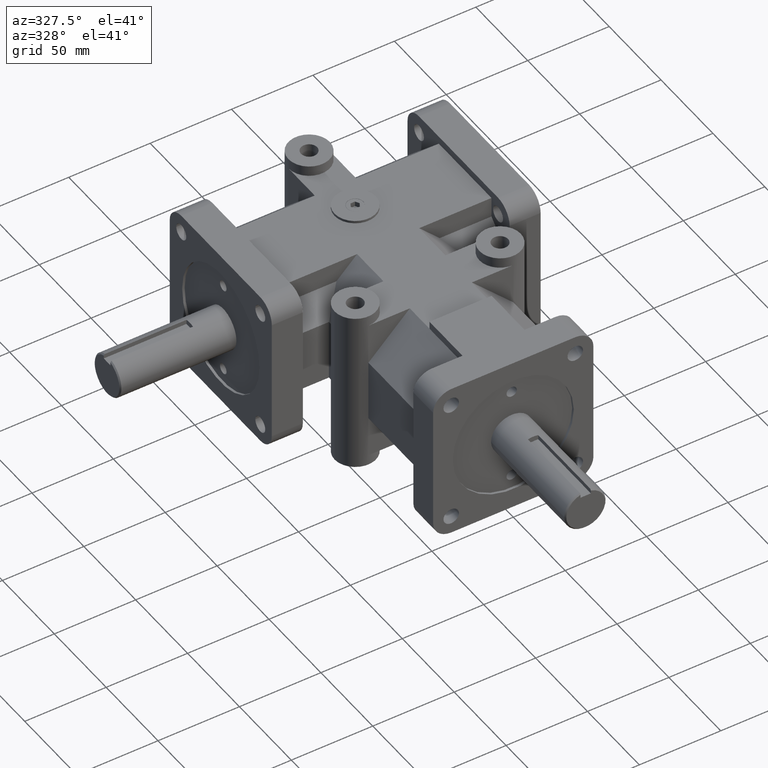
[diagram: clean part render]
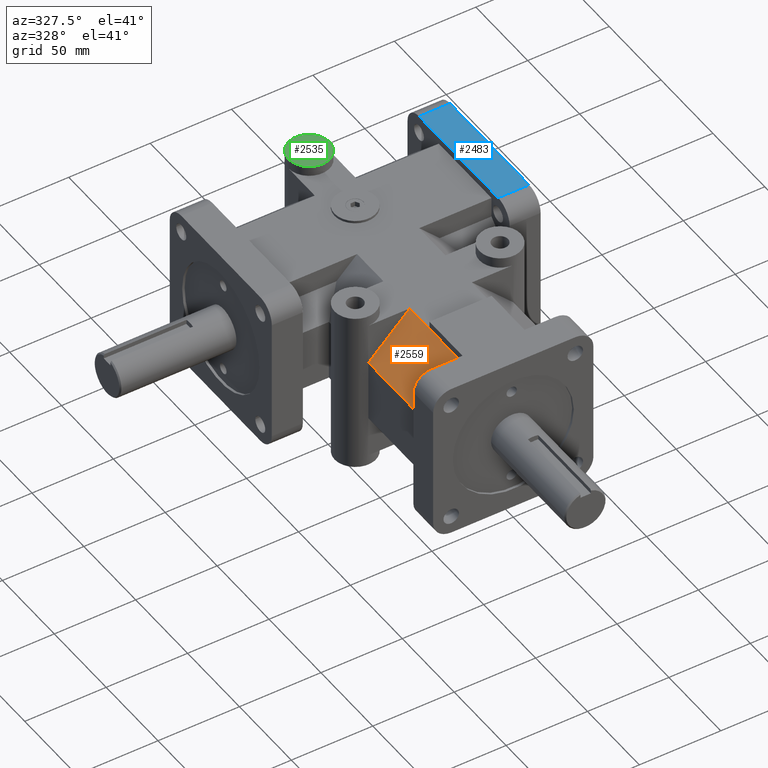
[diagram: same view with three faces highlighted in distinct colors, each labeled with its STEP entity id]
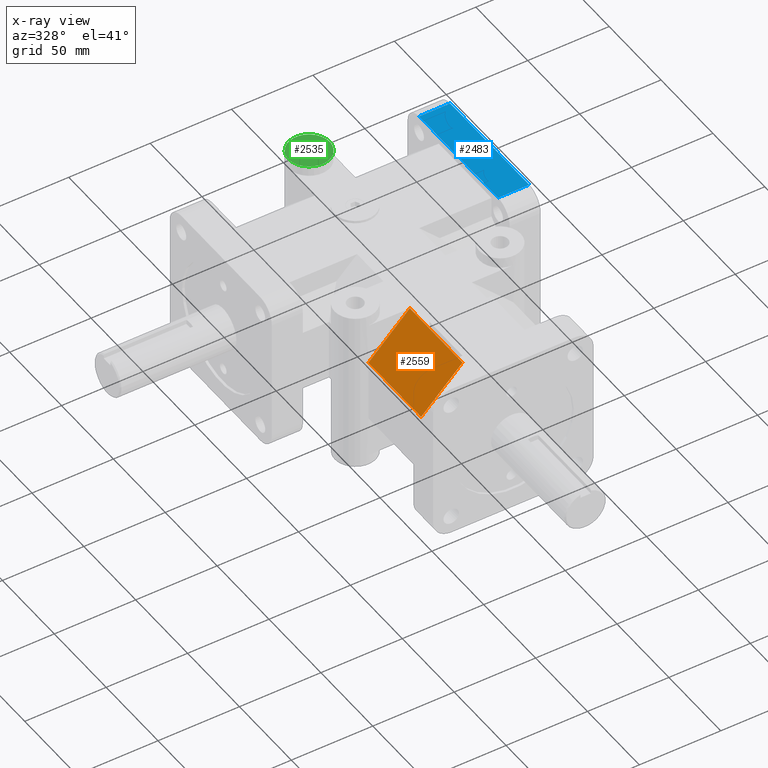
[diagram: x-ray of the same camera — body ghosted, the three highlighted faces saturated]
A machine part, auxiliary view with three faces highlighted in distinct colors.
The next image is the same camera in x-ray (body ghosted, the three faces saturated) — at least one of them is partly hidden behind the body in this view.
Their STEP definitions:

[orange] entity #2559 — the highlighted planar face has unit normal (-0.7071, 0, 0.7071).
#329=FACE_OUTER_BOUND('',#507,.T.);
#507=EDGE_LOOP('',(#2190,#2191,#2192,#2193,#2194));
#578=LINE('',#3672,#828);
#733=LINE('',#4200,#983);
#767=LINE('',#4259,#1017);
#775=LINE('',#4275,#1025);
#776=LINE('',#4276,#1026);
#828=VECTOR('',#2906,1.);
#983=VECTOR('',#3431,1.);
#1017=VECTOR('',#3493,1.);
#1025=VECTOR('',#3511,1.);
#1026=VECTOR('',#3512,1.);
#1085=VERTEX_POINT('',#3669);
#1086=VERTEX_POINT('',#3671);
#1262=VERTEX_POINT('',#4199);
#1273=VERTEX_POINT('',#4257);
#1276=VERTEX_POINT('',#4274);
#1317=EDGE_CURVE('',#1086,#1085,#578,.T.);
#1567=EDGE_CURVE('',#1085,#1262,#733,.T.);
#1601=EDGE_CURVE('',#1262,#1273,#767,.T.);
#1609=EDGE_CURVE('',#1273,#1276,#775,.F.);
#1610=EDGE_CURVE('',#1276,#1086,#776,.T.);
#2190=ORIENTED_EDGE('',*,*,#1567,.T.);
#2191=ORIENTED_EDGE('',*,*,#1601,.T.);
#2192=ORIENTED_EDGE('',*,*,#1609,.T.);
#2193=ORIENTED_EDGE('',*,*,#1610,.T.);
#2194=ORIENTED_EDGE('',*,*,#1317,.T.);
#2414=PLANE('',#2819);
#2559=ADVANCED_FACE('',(#329),#2414,.T.);
#2819=AXIS2_PLACEMENT_3D('',#4273,#3509,#3510);
#2906=DIRECTION('',(0.,1.,0.));
#3431=DIRECTION('',(-0.707106781186548,0.,-0.707106781186548));
#3493=DIRECTION('',(0.,-1.,0.));
#3509=DIRECTION('center_axis',(-0.707106781186548,0.,0.707106781186548));
#3510=DIRECTION('ref_axis',(-0.707106781186548,0.,-0.707106781186548));
#3511=DIRECTION('',(-0.707106781186548,0.,-0.707106781186548));
#3512=DIRECTION('',(0.,1.,0.));
#3669=CARTESIAN_POINT('',(-0.75,2.75,1.75));
#3671=CARTESIAN_POINT('',(-0.75,2.,1.75));
#3672=CARTESIAN_POINT('',(-0.75,4.27896341463415,1.75));
#4199=CARTESIAN_POINT('',(-1.75,2.75,0.749999999999998));
#4200=CARTESIAN_POINT('',(-1.6875,2.75,0.812499999999999));
#4257=CARTESIAN_POINT('',(-1.75,0.75,0.75));
#4259=CARTESIAN_POINT('',(-1.75,4.27896341463415,0.75));
#4273=CARTESIAN_POINT('Origin',(-1.25,4.27896341463415,1.25));
#4274=CARTESIAN_POINT('',(-0.75,0.75,1.75));
#4275=CARTESIAN_POINT('',(-1.6875,0.75,0.8125));
#4276=CARTESIAN_POINT('',(-0.75,4.27896341463415,1.75));

[blue] entity #2483 — the highlighted planar face has unit normal (0, 0, 1).
#253=FACE_OUTER_BOUND('',#417,.T.);
#417=EDGE_LOOP('',(#1844,#1845,#1846,#1847));
#584=LINE('',#3693,#834);
#628=LINE('',#3851,#878);
#630=LINE('',#3857,#880);
#651=LINE('',#3931,#901);
#834=VECTOR('',#2922,1.);
#878=VECTOR('',#3078,1.);
#880=VECTOR('',#3084,1.);
#901=VECTOR('',#3155,1.);
#1094=VERTEX_POINT('',#3689);
#1096=VERTEX_POINT('',#3692);
#1154=VERTEX_POINT('',#3849);
#1155=VERTEX_POINT('',#3853);
#1327=EDGE_CURVE('',#1094,#1096,#584,.T.);
#1403=EDGE_CURVE('',#1154,#1094,#628,.T.);
#1406=EDGE_CURVE('',#1096,#1155,#630,.T.);
#1441=EDGE_CURVE('',#1155,#1154,#651,.T.);
#1844=ORIENTED_EDGE('',*,*,#1403,.F.);
#1845=ORIENTED_EDGE('',*,*,#1441,.F.);
#1846=ORIENTED_EDGE('',*,*,#1406,.F.);
#1847=ORIENTED_EDGE('',*,*,#1327,.F.);
#2363=PLANE('',#2703);
#2483=ADVANCED_FACE('',(#253),#2363,.T.);
#2703=AXIS2_PLACEMENT_3D('',#3930,#3153,#3154);
#2922=DIRECTION('',(0.,1.,0.));
#3078=DIRECTION('',(-1.,0.,0.));
#3084=DIRECTION('',(1.,0.,0.));
#3153=DIRECTION('center_axis',(0.,0.,1.));
#3154=DIRECTION('ref_axis',(-1.,0.,0.));
#3155=DIRECTION('',(0.,-1.,0.));
#3689=CARTESIAN_POINT('',(2.5,4.5025,1.9375));
#3692=CARTESIAN_POINT('',(2.5,7.4975,1.9375));
#3693=CARTESIAN_POINT('',(2.5,7.75,1.9375));
#3849=CARTESIAN_POINT('',(3.25,4.5025,1.9375));
#3851=CARTESIAN_POINT('',(2.6875,4.5025,1.9375));
#3853=CARTESIAN_POINT('',(3.25,7.4975,1.9375));
#3857=CARTESIAN_POINT('',(3.0625,7.4975,1.9375));
#3930=CARTESIAN_POINT('Origin',(2.875,6.,1.9375));
#3931=CARTESIAN_POINT('',(3.25,4.0625,1.9375));

[green] entity #2535 — the highlighted planar face has unit normal (0, 0, 1).
#95=FACE_BOUND('',#481,.T.);
#206=CIRCLE('',#2784,0.195);
#211=CIRCLE('',#2794,0.5);
#305=FACE_OUTER_BOUND('',#480,.T.);
#480=EDGE_LOOP('',(#2078));
#481=EDGE_LOOP('',(#2079));
#1252=VERTEX_POINT('',#4165);
#1257=VERTEX_POINT('',#4181);
#1554=EDGE_CURVE('',#1252,#1252,#206,.T.);
#1559=EDGE_CURVE('',#1257,#1257,#211,.T.);
#2078=ORIENTED_EDGE('',*,*,#1559,.F.);
#2079=ORIENTED_EDGE('',*,*,#1554,.T.);
#2393=PLANE('',#2793);
#2535=ADVANCED_FACE('',(#305,#95),#2393,.T.);
#2784=AXIS2_PLACEMENT_3D('',#4167,#3391,#3392);
#2793=AXIS2_PLACEMENT_3D('',#4180,#3409,#3410);
#2794=AXIS2_PLACEMENT_3D('',#4182,#3411,#3412);
#3391=DIRECTION('center_axis',(0.,0.,-1.));
#3392=DIRECTION('ref_axis',(1.,0.,0.));
#3409=DIRECTION('center_axis',(0.,0.,1.));
#3410=DIRECTION('ref_axis',(-1.,0.,0.));
#3411=DIRECTION('center_axis',(0.,0.,-1.));
#3412=DIRECTION('ref_axis',(1.,0.,0.));
#4165=CARTESIAN_POINT('',(-0.195,7.75,2.));
#4167=CARTESIAN_POINT('Origin',(0.,7.75,2.));
#4180=CARTESIAN_POINT('Origin',(0.0454545454545454,7.75,2.));
#4181=CARTESIAN_POINT('',(-0.5,7.75,2.));
#4182=CARTESIAN_POINT('Origin',(0.,7.75,2.));